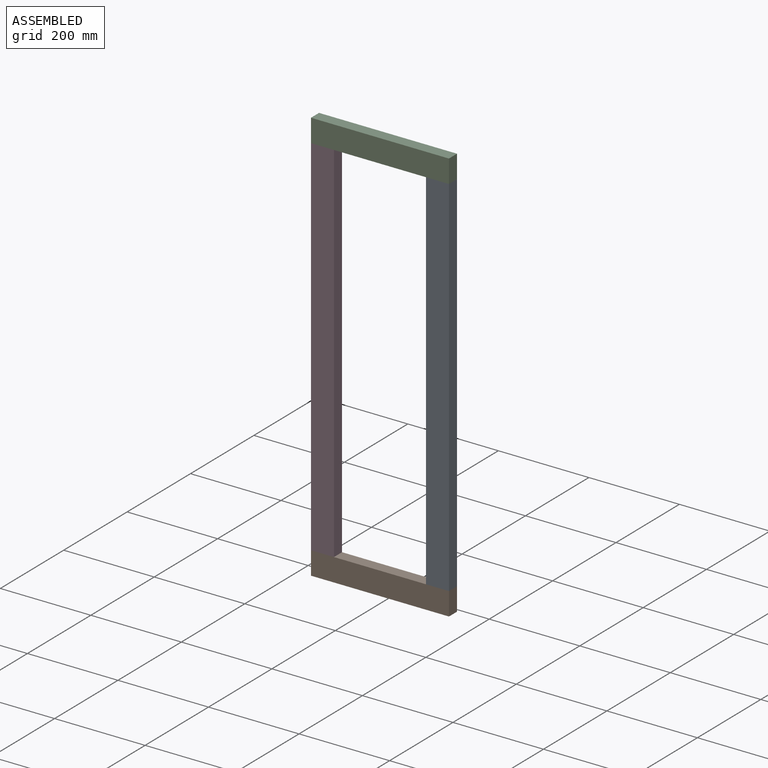
[diagram: assembled view]
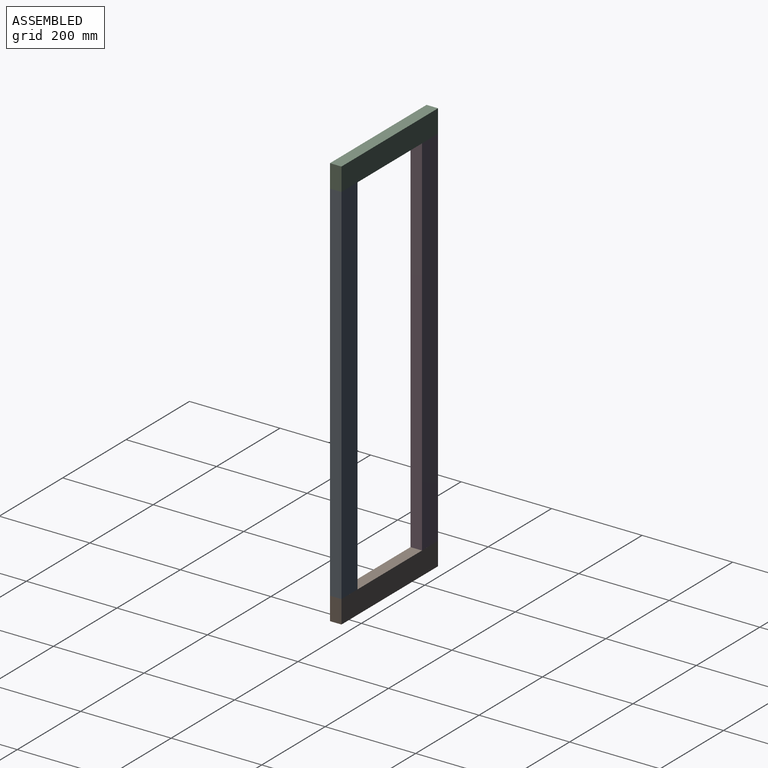
[diagram: assembled view, second angle]
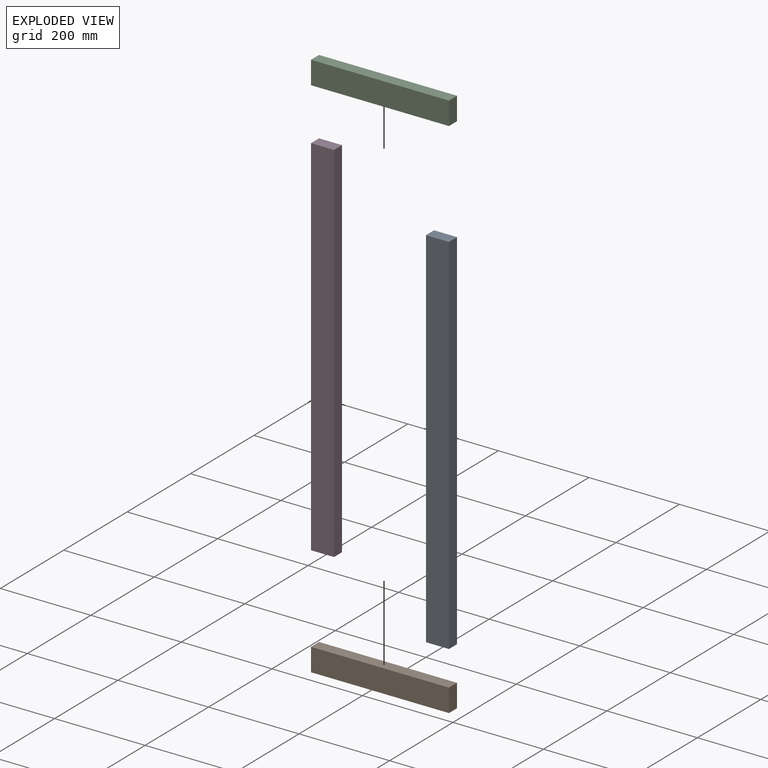
[diagram: exploded view]
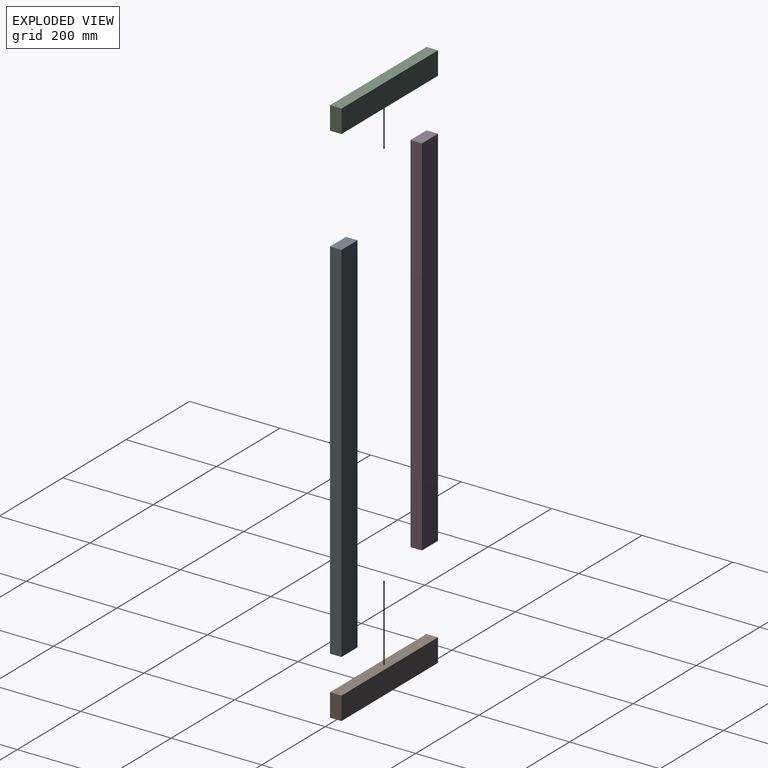
[diagram: exploded view, second angle]
ASSEMBLY  parts=4 mates=3
PART A: 6 faces, bbox 812.8x25.4x50.8 mm
  f0: plane 812.8x25.4mm, normal (0,0,1), area 20645.1mm2, adj f1,f3,f4,f5
  f1: plane 50.8x25.4mm, normal (-1,0,0), area 1290.3mm2, adj f0,f2,f4,f5
  f2: plane 812.8x25.4mm, normal (0,0,-1), area 20645.1mm2, adj f1,f3,f4,f5
  f3: plane 50.8x25.4mm, normal (1,0,0), area 1290.3mm2, adj f0,f2,f4,f5
  f4: plane 812.8x50.8mm, normal (0,-1,0), area 41290.2mm2, adj f0,f1,f2,f3
  f5: plane 812.8x50.8mm, normal (0,1,0), area 41290.2mm2, adj f0,f1,f2,f3
PART B: 6 faces, bbox 304.8x25.4x50.8 mm
  f0: plane 304.8x25.4mm, normal (0,0,1), area 7741.9mm2, adj f1,f3,f4,f5
  f1: plane 50.8x25.4mm, normal (-1,0,0), area 1290.3mm2, adj f0,f2,f4,f5
  f2: plane 304.8x25.4mm, normal (0,0,-1), area 7741.9mm2, adj f1,f3,f4,f5
  f3: plane 50.8x25.4mm, normal (1,0,0), area 1290.3mm2, adj f0,f2,f4,f5
  f4: plane 304.8x50.8mm, normal (0,-1,0), area 15483.8mm2, adj f0,f1,f2,f3
  f5: plane 304.8x50.8mm, normal (0,1,0), area 15483.8mm2, adj f0,f1,f2,f3
PART C: same geometry as B
PART D: same geometry as A
PLACE A rot(axis=(0,1,0),90deg) t=(-36.33,28.47,35.4)mm
PLACE B t=(-163.33,28.47,-396.4)mm
PLACE C t=(-163.33,28.47,467.2)mm
PLACE D rot(axis=(0,1,0),90deg) t=(-290.33,28.47,35.4)mm
MATE fastened D.f1 <-> C.f2  axis (0,0,1) through (-315.73,3.07,441.8)mm
MATE fastened A.f1 <-> C.f2  axis (0,0,1) through (-10.93,3.07,441.8)mm
MATE fastened B.f0 <-> D.f3  axis (0,0,1) through (-315.73,3.07,-371)mm
